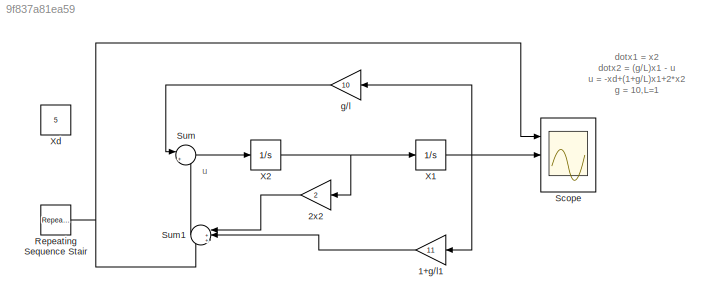
MODEL slx_9f837a81ea59
KIND model
CONFIG AbsTol = auto
CONFIG EnableMultiTasking = off
CONFIG FixedStep = auto
CONFIG MaxStep = auto
CONFIG MinStep = auto
CONFIG RelTol = 1e-3
CONFIG SampleTimeConstraint = Unconstrained
CONFIG SolverName = VariableStepAuto
CONFIG StartTime = 0.0
CONFIG StopTime = 100
BLOCK [Gain] 1+g//l1
  Gain = 11
  NameLocation = top
BLOCK [Gain] 2x2
  Gain = 2
  NameLocation = top
BLOCK [Reference] Repeating Sequence Stair  REF=simulink/Sources/Repeating
Sequence
Stair
  Ports = [0, 1]
  SourceBlock = simulink/Sources/Repeating\nSequence\nStair
  SourceProductBaseCode = SL
  SourceType = Repeating Sequence Stair
BLOCK [Scope] Scope
  Floating = off
  NumInputPorts = 3
  Ports = [3]
  ScopeSpecificationString = Simulink.scopes.TimeScopeBlockCfg('CurrentConfiguration', extmgr.ConfigurationSet(extmgr.Configuration('Core','General UI',true),extmgr.Configuration('Core','Source UI',true),extmgr.Configuration('Sources','WiredSimulink',true),extmgr.Configuration('Visuals','Time Domain',true,'SerializedDisplays',{struct('MinYLimReal','-0.5','MaxYLimReal','4.5','YLabelReal','','MinYLimMag','0.00000','MaxYLimMag',...<+1469ch>
BLOCK [Sum] Sum
  Inputs = |+-
  Ports = [2, 1]
BLOCK [Sum] Sum1
  Inputs = |++-
  NameLocation = top
  Ports = [3, 1]
BLOCK [Integrator] X1
  Ports = [1, 1]
BLOCK [Integrator] X2
  Ports = [1, 1]
BLOCK [Constant] Xd
  Value = 5
BLOCK [Gain] g//l
  Gain = 10
  NameLocation = top
ANNOTATION (root): dotx1 = x2 dotx2 = (g/L)x1 - u u = -xd+(1+g/L)x1+2*x2 g = 10,L=1
ANNOTATION (root): u
LINE 1+g//l1:1 -> Sum1:2
LINE 2x2:1 -> Sum1:1
NET Repeating Sequence Stair:1 -> Scope:1, Sum1:3
LINE Sum1:1 -> Sum:2
LINE Sum:1 -> X2:1
NET X1:1 -> 1+g//l1:1, Scope:2, g//l:1
NET X2:1 -> 2x2:1, X1:1
LINE g//l:1 -> Sum:1
note: NET lines group one-source signal fan-out (src -> all destinations, sorted); 1:1 wires keep LINE
